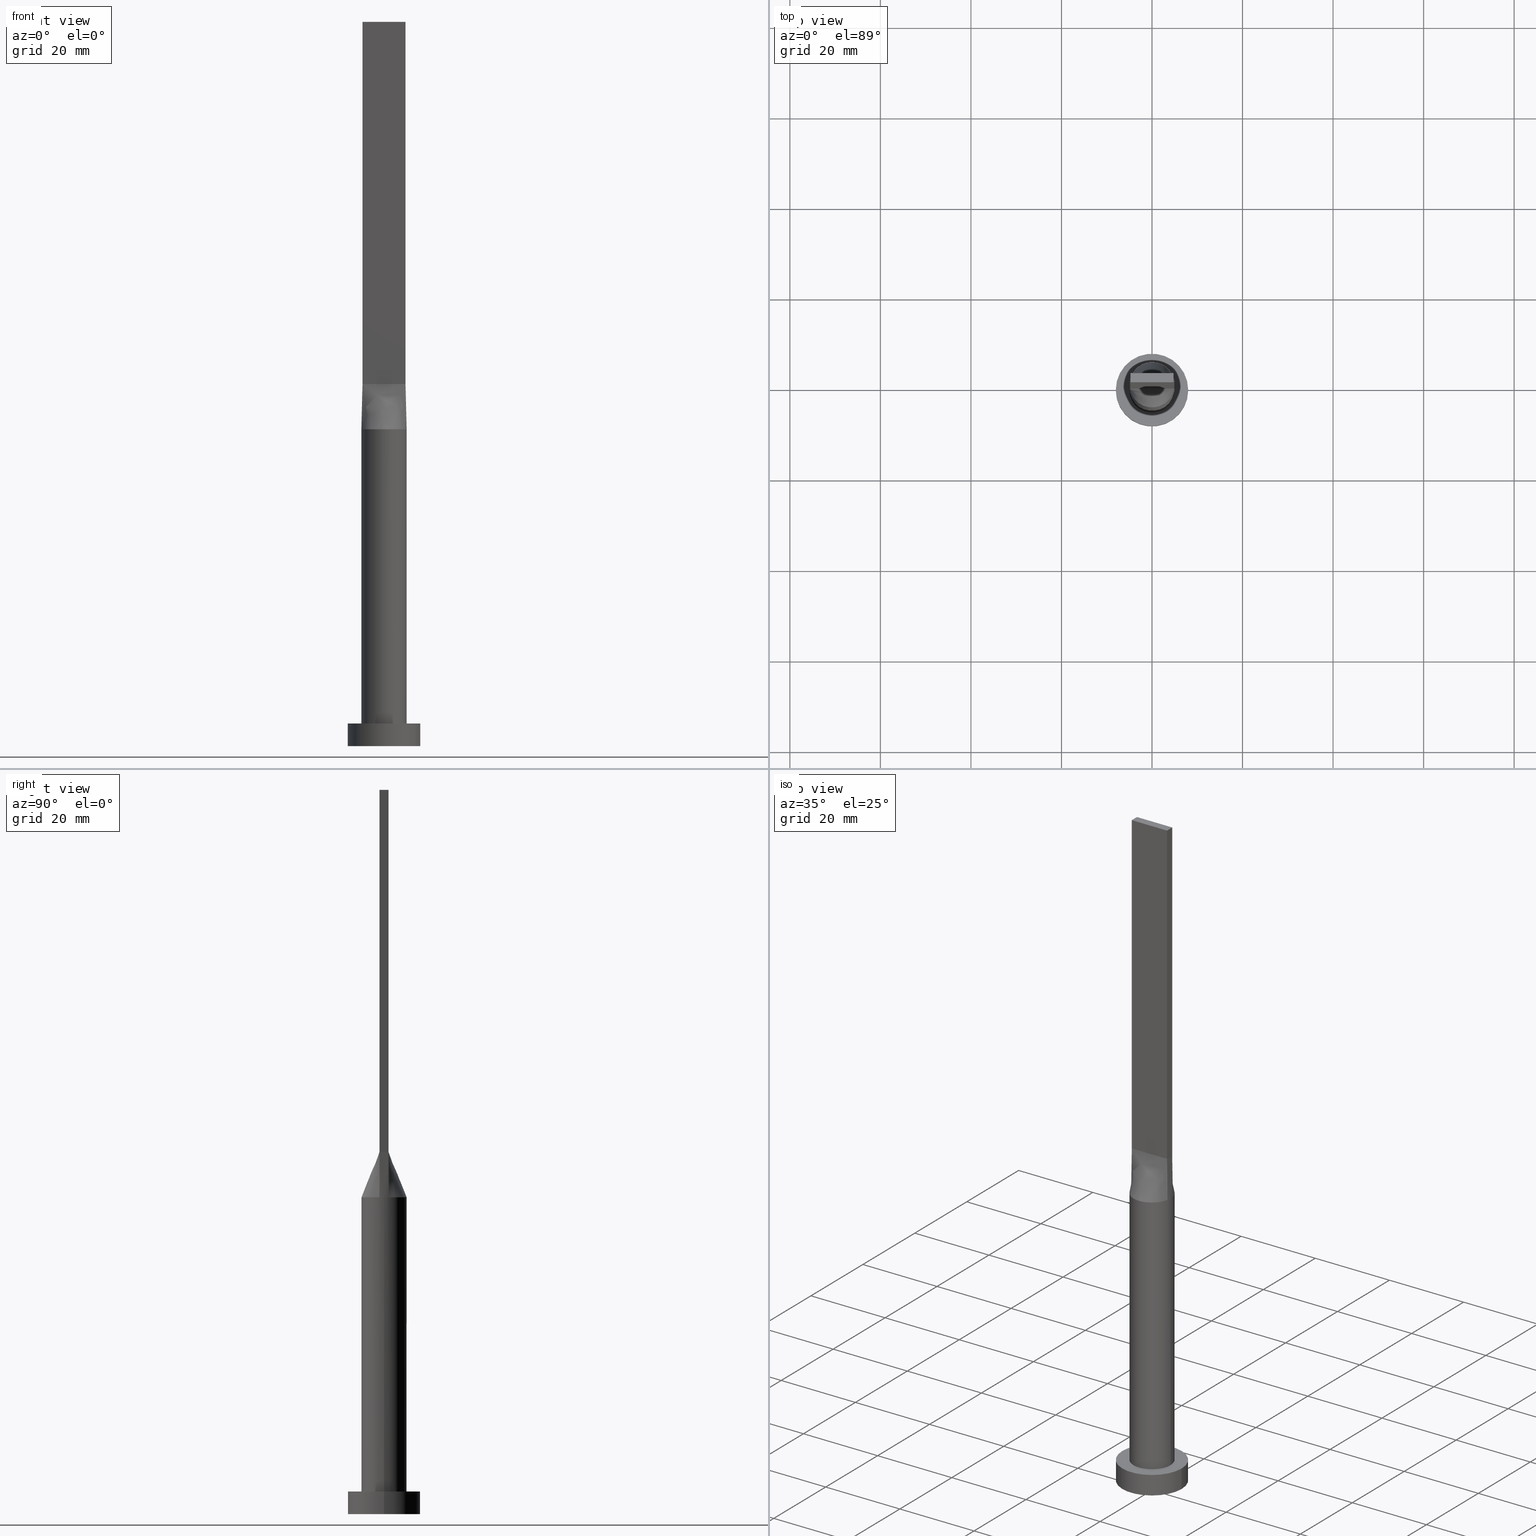
[diagram: canonical four-view strip — front | top / right | iso, engineering-drawing reading convention]
A machine part, canonical four-view strip (front | top / right | iso — engineering-drawing reading convention). The complete STEP part file that produces these views, byte-faithful:
ISO-10303-21;
HEADER;
FILE_DESCRIPTION (( 'STEP AP203' ),
    '1' );
FILE_NAME ('1424.STEP',
    '2023-02-13T09:33:48',
    ( '' ),
    ( '' ),
    'SwSTEP 2.0',
    'SolidWorks 2019',
    '' );
FILE_SCHEMA (( 'CONFIG_CONTROL_DESIGN' ));
ENDSEC;

DATA;
#1 = CARTESIAN_POINT ( 'NONE',  ( 1.583333333333339255, -0.9999999999999995559, 79.99999999999998579 ) ) ;
#2 = EDGE_LOOP ( 'NONE', ( #374, #24, #474, #335 ) ) ;
#3 = APPLICATION_PROTOCOL_DEFINITION ( 'international standard', 'config_control_design', 1994, #62 ) ;
#4 = CARTESIAN_POINT ( 'NONE',  ( 0.3958333333333403647, -0.9999999999999993339, 79.99999999999998579 ) ) ;
#5 = VERTEX_POINT ( 'NONE', #162 ) ;
#6 = CALENDAR_DATE ( 2023, 13, 2 ) ;
#7 = CARTESIAN_POINT ( 'NONE',  ( -4.667610010780609997, -1.859271532507959845, 70.00000000000001421 ) ) ;
#8 = CC_DESIGN_PERSON_AND_ORGANIZATION_ASSIGNMENT ( #105, #300, ( #299 ) ) ;
#9 = ORIENTED_EDGE ( 'NONE', *, *, #163, .F. ) ;
#10 = CALENDAR_DATE ( 2023, 13, 2 ) ;
#11 = CARTESIAN_POINT ( 'NONE',  ( 3.166666666666665630, 1.000000000000000000, 79.99999999999998579 ) ) ;
#12 = CARTESIAN_POINT ( 'NONE',  ( 4.750000000000000000, 1.000000000000000000, 80.00000000000000000 ) ) ;
#13 = PERSON_AND_ORGANIZATION_ROLE ( 'design_owner' ) ;
#14 = CARTESIAN_POINT ( 'NONE',  ( -4.750000000000000000, 0.6666666666666667407, 79.99999999999998579 ) ) ;
#15 = ORIENTED_EDGE ( 'NONE', *, *, #591, .F. ) ;
#16 = EDGE_CURVE ( 'NONE', #416, #378, #157, .T. ) ;
#17 = COORDINATED_UNIVERSAL_TIME_OFFSET ( 1, 0, .AHEAD. ) ;
#18 = AXIS2_PLACEMENT_3D ( 'NONE', #128, #311, #537 ) ;
#19 = CARTESIAN_POINT ( 'NONE',  ( -3.900093280396789819, 3.182195704254724422, 70.00000000000002842 ) ) ;
#20 = APPROVAL_PERSON_ORGANIZATION ( #575, #536, #65 ) ;
#21 = ORIENTED_EDGE ( 'NONE', *, *, #206, .T. ) ;
#22 = DATE_AND_TIME ( #6, #135 ) ;
#23 = CARTESIAN_POINT ( 'NONE',  ( -0.1979166666666680452, 1.000000000000000000, 79.99999999999998579 ) ) ;
#24 = ORIENTED_EDGE ( 'NONE', *, *, #197, .F. ) ;
#25 = CARTESIAN_POINT ( 'NONE',  ( -3.067114325249248097, 3.991228734590924976, 70.00000000000002842 ) ) ;
#26 = ORIENTED_EDGE ( 'NONE', *, *, #243, .T. ) ;
#27 = CARTESIAN_POINT ( 'NONE',  ( 4.750000000000000000, 1.000000000000000000, 160.0000000000000000 ) ) ;
#28 = CIRCLE ( 'NONE', #343, 5.000000000000000000 ) ;
#29 = CARTESIAN_POINT ( 'NONE',  ( 4.750000000000000000, -0.9999999999999997780, 160.0000000000000000 ) ) ;
#30 = ADVANCED_FACE ( 'NONE', ( #580 ), #302, .F. ) ;
#31 = DIRECTION ( 'NONE',  ( 0.000000000000000000, 0.000000000000000000, 1.000000000000000000 ) ) ;
#32 = DIRECTION ( 'NONE',  ( -0.000000000000000000, 0.000000000000000000, -1.000000000000000000 ) ) ;
#33 = CARTESIAN_POINT ( 'NONE',  ( -4.892748924933745691, 1.030052405249209269, 70.00000000000000000 ) ) ;
#34 = DIRECTION ( 'NONE',  ( 0.000000000000000000, 0.000000000000000000, 1.000000000000000000 ) ) ;
#35 = EDGE_CURVE ( 'NONE', #275, #378, #244, .T. ) ;
#36 = CARTESIAN_POINT ( 'NONE',  ( 5.000000000000000888, 3.511115666546218713E-17, 70.00000000000000000 ) ) ;
#37 = FACE_OUTER_BOUND ( 'NONE', #560, .T. ) ;
#38 = CIRCLE ( 'NONE', #308, 5.000000000000000000 ) ;
#39 = PLANE ( 'NONE',  #547 ) ;
#40 = CARTESIAN_POINT ( 'NONE',  ( -4.750000000000000000, -0.9999999999999991118, 160.0000000000000000 ) ) ;
#41 = CARTESIAN_POINT ( 'NONE',  ( -4.750000000000000000, 1.000000000000000000, 160.0000000000000000 ) ) ;
#42 = CARTESIAN_POINT ( 'NONE',  ( -4.892748924933745691, -1.030052405249207936, 70.00000000000000000 ) ) ;
#43 = AXIS2_PLACEMENT_3D ( 'NONE', #172, #499, #310 ) ;
#44 = B_SPLINE_SURFACE_WITH_KNOTS ( 'NONE', 3, 1, ( 
 ( #42, #183 ),
 ( #419, #103 ),
 ( #7, #186 ),
 ( #367, #422 ),
 ( #53, #509 ),
 ( #513, #191 ),
 ( #193, #549 ),
 ( #552, #412 ),
 ( #141, #95 ),
 ( #99, #321 ),
 ( #283, #56 ),
 ( #280, #239 ),
 ( #276, #4 ),
 ( #375, #147 ),
 ( #369, #469 ),
 ( #407, #1 ),
 ( #561, #143 ),
 ( #463, #50 ),
 ( #371, #559 ),
 ( #233, #229 ),
 ( #149, #272 ),
 ( #326, #139 ) ),
 .UNSPECIFIED., .F., .F., .F.,
 ( 4, 2, 2, 2, 2, 2, 2, 2, 2, 2, 4 ),
 ( 2, 2 ),
 ( 0.000000000000000000, 0.1250000000000000278, 0.2500000000000000555, 0.3750000000000001110, 0.4375000000000000555, 0.5000000000000000000, 0.5625000000000000000, 0.6250000000000000000, 0.7500000000000000000, 0.8750000000000001110, 1.000000000000000000 ),
 ( 0.000000000000000000, 1.000000000000000000 ),
 .UNSPECIFIED. ) ;
#45 = CARTESIAN_POINT ( 'NONE',  ( 5.000000000000000888, -0.3470731991230004421, 70.00000000000001421 ) ) ;
#46 = DIRECTION ( 'NONE',  ( 0.000000000000000000, 0.000000000000000000, 1.000000000000000000 ) ) ;
#47 = EDGE_CURVE ( 'NONE', #511, #275, #307, .T. ) ;
#48 = ORGANIZATION ( 'NEUR�EN�', 'NEUR�EN�', '' ) ;
#49 = CARTESIAN_POINT ( 'NONE',  ( 0.000000000000000000, 0.000000000000000000, 160.0000000000000000 ) ) ;
#50 = CARTESIAN_POINT ( 'NONE',  ( 2.770833333333338366, -0.9999999999999995559, 79.99999999999998579 ) ) ;
#51 = EDGE_LOOP ( 'NONE', ( #278, #597, #577, #432 ) ) ;
#52 = CARTESIAN_POINT ( 'NONE',  ( 0.000000000000000000, 0.000000000000000000, 0.000000000000000000 ) ) ;
#53 = CARTESIAN_POINT ( 'NONE',  ( -3.900093280396790263, -3.182195704254722646, 70.00000000000000000 ) ) ;
#54 = VERTEX_POINT ( 'NONE', #455 ) ;
#55 = EDGE_CURVE ( 'NONE', #550, #54, #494, .T. ) ;
#56 = CARTESIAN_POINT ( 'NONE',  ( -0.1979166666666593299, -0.9999999999999993339, 79.99999999999998579 ) ) ;
#57 = ORIENTED_EDGE ( 'NONE', *, *, #365, .F. ) ;
#58 = VECTOR ( 'NONE', #133, 999.9999999999998863 ) ;
#59 = DATE_AND_TIME ( #421, #436 ) ;
#60 = PLANE ( 'NONE',  #423 ) ;
#61 = EDGE_LOOP ( 'NONE', ( #337, #340, #204, #166 ) ) ;
#62 = APPLICATION_CONTEXT ( 'configuration controlled 3d designs of mechanical parts and assemblies' ) ;
#63 = CARTESIAN_POINT ( 'NONE',  ( 0.3958333333333319271, 1.000000000000000000, 79.99999999999998579 ) ) ;
#64 = ORIENTED_EDGE ( 'NONE', *, *, #286, .T. ) ;
#65 = APPROVAL_ROLE ( '' ) ;
#66 = FACE_OUTER_BOUND ( 'NONE', #250, .T. ) ;
#67 = ORIENTED_EDGE ( 'NONE', *, *, #562, .F. ) ;
#68 = EDGE_CURVE ( 'NONE', #322, #154, #453, .T. ) ;
#69 = CIRCLE ( 'NONE', #108, 5.000000000000000000 ) ;
#70 = FACE_OUTER_BOUND ( 'NONE', #342, .T. ) ;
#71 = VERTEX_POINT ( 'NONE', #357 ) ;
#72 = CARTESIAN_POINT ( 'NONE',  ( -1.583333333333334592, 1.000000000000000000, 79.99999999999998579 ) ) ;
#73 = ORIENTED_EDGE ( 'NONE', *, *, #121, .T. ) ;
#74 = EDGE_CURVE ( 'NONE', #511, #479, #398, .T. ) ;
#75 = CARTESIAN_POINT ( 'NONE',  ( 0.000000000000000000, 0.000000000000000000, 70.00000000000000000 ) ) ;
#76 = CARTESIAN_POINT ( 'NONE',  ( -3.900093280396789819, 3.182195704254724422, 70.00000000000002842 ) ) ;
#77 = DIRECTION ( 'NONE',  ( 1.000000000000000000, 0.000000000000000000, -0.000000000000000000 ) ) ;
#78 = VECTOR ( 'NONE', #498, 1000.000000000000000 ) ;
#79 = DIRECTION ( 'NONE',  ( -0.000000000000000000, -0.000000000000000000, -1.000000000000000000 ) ) ;
#80 = CARTESIAN_POINT ( 'NONE',  ( 0.000000000000000000, 0.000000000000000000, 5.000000000000000000 ) ) ;
#81 = LINE ( 'NONE', #134, #492 ) ;
#82 = ADVANCED_FACE ( 'NONE', ( #37 ), #176, .F. ) ;
#83 = CYLINDRICAL_SURFACE ( 'NONE', #164, 5.000000000000000000 ) ;
#84 = DIRECTION ( 'NONE',  ( -1.000000000000000000, 6.847592668329501559E-17, 0.000000000000000000 ) ) ;
#85 = DIRECTION ( 'NONE',  ( 0.000000000000000000, 1.000000000000000000, 0.000000000000000000 ) ) ;
#86 = CARTESIAN_POINT ( 'NONE',  ( 4.750000000000000000, -0.9999999999999997780, 160.0000000000000000 ) ) ;
#87 = VECTOR ( 'NONE', #411, 1000.000000000000000 ) ;
#88 = LINE ( 'NONE', #370, #58 ) ;
#89 = DIRECTION ( 'NONE',  ( -1.000000000000000000, -0.000000000000000000, -0.000000000000000000 ) ) ;
#90 = DIRECTION ( 'NONE',  ( -1.000000000000000000, 0.000000000000000000, 0.000000000000000000 ) ) ;
#91 = EDGE_CURVE ( 'NONE', #439, #237, #476, .T. ) ;
#92 = DIRECTION ( 'NONE',  ( 0.000000000000000000, 0.000000000000000000, 1.000000000000000000 ) ) ;
#93 = CIRCLE ( 'NONE', #387, 5.000000000000000000 ) ;
#94 = VECTOR ( 'NONE', #79, 1000.000000000000000 ) ;
#95 = CARTESIAN_POINT ( 'NONE',  ( -0.7916666666666588581, -0.9999999999999991118, 79.99999999999998579 ) ) ;
#96 = ORIENTED_EDGE ( 'NONE', *, *, #155, .F. ) ;
#97 = CC_DESIGN_APPROVAL ( #295, ( #544 ) ) ;
#98 = PLANE ( 'NONE',  #192 ) ;
#99 = CARTESIAN_POINT ( 'NONE',  ( -0.6760916456145810161, -4.965368365385190330, 70.00000000000004263 ) ) ;
#100 = ORIENTED_EDGE ( 'NONE', *, *, #554, .T. ) ;
#101 = EDGE_CURVE ( 'NONE', #54, #298, #81, .T. ) ;
#102 = CARTESIAN_POINT ( 'NONE',  ( 4.892748924933744803, 1.030052405249211045, 70.00000000000000000 ) ) ;
#103 = CARTESIAN_POINT ( 'NONE',  ( -4.354166666666665186, -0.9999999999999991118, 80.00000000000000000 ) ) ;
#104 = VERTEX_POINT ( 'NONE', #264 ) ;
#105 = PERSON_AND_ORGANIZATION ( #569, #48 ) ;
#106 = CARTESIAN_POINT ( 'NONE',  ( -3.166666666666668295, 1.000000000000000000, 79.99999999999998579 ) ) ;
#107 = ORIENTED_EDGE ( 'NONE', *, *, #16, .T. ) ;
#108 = AXIS2_PLACEMENT_3D ( 'NONE', #75, #260, #350 ) ;
#109 = PERSON_AND_ORGANIZATION ( #569, #48 ) ;
#110 = DIRECTION ( 'NONE',  ( -0.000000000000000000, -0.000000000000000000, -1.000000000000000000 ) ) ;
#111 = ORIENTED_EDGE ( 'NONE', *, *, #510, .F. ) ;
#112 = CARTESIAN_POINT ( 'NONE',  ( 0.7916666666666654084, 1.000000000000000000, 79.99999999999998579 ) ) ;
#113 = ADVANCED_FACE ( 'NONE', ( #259 ), #393, .F. ) ;
#114 = ORIENTED_EDGE ( 'NONE', *, *, #286, .F. ) ;
#115 = PERSON_AND_ORGANIZATION_ROLE ( 'design_supplier' ) ;
#116 = CARTESIAN_POINT ( 'NONE',  ( -4.892748924933745691, -1.030052405249208158, 70.00000000000000000 ) ) ;
#117 = EDGE_LOOP ( 'NONE', ( #150, #57 ) ) ;
#118 = PERSON_AND_ORGANIZATION_ROLE ( 'creator' ) ;
#119 = CARTESIAN_POINT ( 'NONE',  ( -4.750000000000000000, 0.3333333333333336479, 79.99999999999998579 ) ) ;
#120 = DIRECTION ( 'NONE',  ( -0.000000000000000000, -0.000000000000000000, -1.000000000000000000 ) ) ;
#121 = EDGE_CURVE ( 'NONE', #479, #439, #563, .T. ) ;
#122 = DIRECTION ( 'NONE',  ( -1.000000000000000000, 0.000000000000000000, 0.000000000000000000 ) ) ;
#123 = VERTEX_POINT ( 'NONE', #86 ) ;
#124 = LINE ( 'NONE', #445, #78 ) ;
#125 = CARTESIAN_POINT ( 'NONE',  ( -1.331739278681919991, 4.830988864699813590, 70.00000000000000000 ) ) ;
#126 = CARTESIAN_POINT ( 'NONE',  ( 4.750000000000000000, 1.000000000000000000, 80.00000000000000000 ) ) ;
#127 = CARTESIAN_POINT ( 'NONE',  ( -0.3380808736611314869, 4.999999999999999112, 70.00000000000000000 ) ) ;
#128 = CARTESIAN_POINT ( 'NONE',  ( 0.000000000000000000, 0.000000000000000000, 5.000000000000000000 ) ) ;
#129 = DIRECTION ( 'NONE',  ( 0.000000000000000000, 0.000000000000000000, 1.000000000000000000 ) ) ;
#130 = LINE ( 'NONE', #454, #483 ) ;
#131 = CARTESIAN_POINT ( 'NONE',  ( 0.000000000000000000, 0.000000000000000000, 70.00000000000000000 ) ) ;
#132 = VECTOR ( 'NONE', #89, 1000.000000000000000 ) ;
#133 = DIRECTION ( 'NONE',  ( -0.01427337385845013802, -0.003004920812305207807, -0.9998936149659166661 ) ) ;
#134 = CARTESIAN_POINT ( 'NONE',  ( -4.750000000000000000, 1.000000000000000000, 80.00000000000000000 ) ) ;
#135 = LOCAL_TIME ( 10, 33, 48.00000000000000000, #384 ) ;
#136 = VECTOR ( 'NONE', #348, 1000.000000000000000 ) ;
#137 = EDGE_CURVE ( 'NONE', #123, #275, #446, .T. ) ;
#138 = DIRECTION ( 'NONE',  ( -0.000000000000000000, -0.000000000000000000, -1.000000000000000000 ) ) ;
#139 = CARTESIAN_POINT ( 'NONE',  ( 4.750000000000000000, -0.9999999999999997780, 80.00000000000000000 ) ) ;
#140 = CYLINDRICAL_SURFACE ( 'NONE', #220, 8.000000000000000000 ) ;
#141 = CARTESIAN_POINT ( 'NONE',  ( -1.331739278681922656, -4.830988864699811813, 70.00000000000001421 ) ) ;
#142 = EDGE_LOOP ( 'NONE', ( #424, #331, #208, #574 ) ) ;
#143 = CARTESIAN_POINT ( 'NONE',  ( 1.979166666666672514, -0.9999999999999995559, 79.99999999999998579 ) ) ;
#144 = EDGE_CURVE ( 'NONE', #5, #71, #93, .T. ) ;
#145 = ORIENTED_EDGE ( 'NONE', *, *, #328, .F. ) ;
#146 = FACE_OUTER_BOUND ( 'NONE', #427, .T. ) ;
#147 = CARTESIAN_POINT ( 'NONE',  ( 0.7916666666666735130, -0.9999999999999995559, 79.99999999999998579 ) ) ;
#148 = APPROVAL_ROLE ( '' ) ;
#149 = CARTESIAN_POINT ( 'NONE',  ( 4.808752461626937702, -1.429035605956550103, 70.00000000000000000 ) ) ;
#150 = ORIENTED_EDGE ( 'NONE', *, *, #243, .F. ) ;
#151 = APPROVAL_STATUS ( 'not_yet_approved' ) ;
#152 = AXIS2_PLACEMENT_3D ( 'NONE', #40, #546, #84 ) ;
#153 = CARTESIAN_POINT ( 'NONE',  ( -1.331739278681919991, 4.830988864699813590, 70.00000000000000000 ) ) ;
#154 = VERTEX_POINT ( 'NONE', #399 ) ;
#155 = EDGE_CURVE ( 'NONE', #154, #408, #431, .T. ) ;
#156 = CARTESIAN_POINT ( 'NONE',  ( 4.750000000000000000, -0.9999999999999997780, 80.00000000000000000 ) ) ;
#157 = LINE ( 'NONE', #529, #296 ) ;
#158 = PERSON_AND_ORGANIZATION ( #569, #48 ) ;
#159 = CARTESIAN_POINT ( 'NONE',  ( 0.6760916456145784625, 4.965368365385191218, 70.00000000000001421 ) ) ;
#160 = ORIENTED_EDGE ( 'NONE', *, *, #55, .F. ) ;
#161 = CARTESIAN_POINT ( 'NONE',  ( -0.7916666666666679619, 1.000000000000000000, 79.99999999999998579 ) ) ;
#162 = CARTESIAN_POINT ( 'NONE',  ( -5.000000000000000888, -2.735102206719564433E-16, 70.00000000000000000 ) ) ;
#163 = EDGE_CURVE ( 'NONE', #378, #54, #599, .T. ) ;
#164 = AXIS2_PLACEMENT_3D ( 'NONE', #356, #530, #122 ) ;
#165 = CARTESIAN_POINT ( 'NONE',  ( -4.750000000000000000, -0.9999999999999991118, 80.00000000000000000 ) ) ;
#166 = ORIENTED_EDGE ( 'NONE', *, *, #328, .T. ) ;
#167 = LINE ( 'NONE', #212, #136 ) ;
#168 = CARTESIAN_POINT ( 'NONE',  ( 1.331739278681919991, 4.830988864699814478, 70.00000000000000000 ) ) ;
#169 = AXIS2_PLACEMENT_3D ( 'NONE', #346, #531, #490 ) ;
#170 = CARTESIAN_POINT ( 'NONE',  ( 5.000000000000000000, 6.123233995736766282E-16, 5.000000000000000000 ) ) ;
#171 = AXIS2_PLACEMENT_3D ( 'NONE', #540, #129, #363 ) ;
#172 = CARTESIAN_POINT ( 'NONE',  ( 0.000000000000000000, 0.000000000000000000, 70.00000000000000000 ) ) ;
#173 = ADVANCED_FACE ( 'NONE', ( #236 ), #44, .T. ) ;
#174 = LINE ( 'NONE', #501, #410 ) ;
#175 = AXIS2_PLACEMENT_3D ( 'NONE', #52, #235, #417 ) ;
#176 = PLANE ( 'NONE',  #152 ) ;
#177 = FACE_BOUND ( 'NONE', #117, .T. ) ;
#178 = CARTESIAN_POINT ( 'NONE',  ( -4.214142381859630859, 2.735777372109856387, 70.00000000000000000 ) ) ;
#179 =( LENGTH_UNIT ( ) NAMED_UNIT ( * ) SI_UNIT ( .MILLI., .METRE. ) );
#180 = CARTESIAN_POINT ( 'NONE',  ( 4.214142381859630859, 2.735777372109855943, 70.00000000000001421 ) ) ;
#181 = CC_DESIGN_PERSON_AND_ORGANIZATION_ASSIGNMENT ( #194, #115, ( #211 ) ) ;
#182 = CARTESIAN_POINT ( 'NONE',  ( 4.750000000000000000, 0.3333333333333350357, 79.99999999999998579 ) ) ;
#183 = CARTESIAN_POINT ( 'NONE',  ( -4.750000000000000000, -0.9999999999999991118, 80.00000000000000000 ) ) ;
#184 = AXIS2_PLACEMENT_3D ( 'NONE', #460, #46, #458 ) ;
#185 = VERTEX_POINT ( 'NONE', #415 ) ;
#186 = CARTESIAN_POINT ( 'NONE',  ( -3.958333333333331261, -0.9999999999999991118, 80.00000000000000000 ) ) ;
#187 = ORIENTED_EDGE ( 'NONE', *, *, #510, .T. ) ;
#188 = MECHANICAL_CONTEXT ( 'NONE', #62, 'mechanical' ) ;
#189 = APPROVAL ( #332, 'NEUR�EN�' ) ;
#190 = CARTESIAN_POINT ( 'NONE',  ( -4.892747712986291297, 1.030052143680498133, 70.00000000000000000 ) ) ;
#191 = CARTESIAN_POINT ( 'NONE',  ( -1.979166666666659857, -0.9999999999999991118, 79.99999999999998579 ) ) ;
#192 = AXIS2_PLACEMENT_3D ( 'NONE', #49, #282, #466 ) ;
#193 = CARTESIAN_POINT ( 'NONE',  ( -2.546422404201599488, -4.351724242187074765, 70.00000000000000000 ) ) ;
#194 = PERSON_AND_ORGANIZATION ( #569, #48 ) ;
#195 = CARTESIAN_POINT ( 'NONE',  ( 2.770833333333332593, 1.000000000000000000, 79.99999999999998579 ) ) ;
#196 = ORIENTED_EDGE ( 'NONE', *, *, #504, .T. ) ;
#197 = EDGE_CURVE ( 'NONE', #185, #298, #319, .T. ) ;
#198 = PERSON_AND_ORGANIZATION_ROLE ( 'creator' ) ;
#199 = CARTESIAN_POINT ( 'NONE',  ( -5.000000000000000000, -0.3470731991229979996, 70.00000000000001421 ) ) ;
#200 = ORIENTED_EDGE ( 'NONE', *, *, #373, .F. ) ;
#201 = VECTOR ( 'NONE', #506, 1000.000000000000000 ) ;
#202 = DATE_AND_TIME ( #290, #372 ) ;
#203 = CARTESIAN_POINT ( 'NONE',  ( 1.583333333333332593, 1.000000000000000000, 79.99999999999998579 ) ) ;
#204 = ORIENTED_EDGE ( 'NONE', *, *, #478, .T. ) ;
#205 = COORDINATED_UNIVERSAL_TIME_OFFSET ( 1, 0, .AHEAD. ) ;
#206 = EDGE_CURVE ( 'NONE', #237, #5, #28, .T. ) ;
#207 = CARTESIAN_POINT ( 'NONE',  ( -1.649264041307594963, 4.731318088779739917, 70.00000000000000000 ) ) ;
#208 = ORIENTED_EDGE ( 'NONE', *, *, #155, .T. ) ;
#209 = CARTESIAN_POINT ( 'NONE',  ( -2.770833333333334814, 1.000000000000000000, 79.99999999999998579 ) ) ;
#210 = ORIENTED_EDGE ( 'NONE', *, *, #144, .T. ) ;
#211 = PRODUCT_DEFINITION_FORMATION_WITH_SPECIFIED_SOURCE ( 'LIBOVOLN�', '', #541, .NOT_KNOWN. ) ;
#212 = CARTESIAN_POINT ( 'NONE',  ( -4.750000000000000000, 1.000000000000000000, 160.0000000000000000 ) ) ;
#213 = DIRECTION ( 'NONE',  ( -0.000000000000000000, -0.000000000000000000, -1.000000000000000000 ) ) ;
#214 = FACE_OUTER_BOUND ( 'NONE', #527, .T. ) ;
#215 = DIRECTION ( 'NONE',  ( 0.000000000000000000, 0.000000000000000000, 1.000000000000000000 ) ) ;
#216 = EDGE_CURVE ( 'NONE', #386, #322, #361, .T. ) ;
#217 = CARTESIAN_POINT ( 'NONE',  ( 0.000000000000000000, 0.000000000000000000, 0.000000000000000000 ) ) ;
#218 = DIRECTION ( 'NONE',  ( 1.000000000000000000, 0.000000000000000000, 0.000000000000000000 ) ) ;
#219 = DIRECTION ( 'NONE',  ( -0.000000000000000000, -0.000000000000000000, -1.000000000000000000 ) ) ;
#220 = AXIS2_PLACEMENT_3D ( 'NONE', #462, #459, #90 ) ;
#221 = CC_DESIGN_SECURITY_CLASSIFICATION ( #299, ( #211 ) ) ;
#222 = CARTESIAN_POINT ( 'NONE',  ( -3.067114325249248097, 3.991228734590924976, 70.00000000000002842 ) ) ;
#223 = DIRECTION ( 'NONE',  ( -0.000000000000000000, -0.000000000000000000, -1.000000000000000000 ) ) ;
#224 = CC_DESIGN_PERSON_AND_ORGANIZATION_ASSIGNMENT ( #525, #118, ( #211 ) ) ;
#225 = CARTESIAN_POINT ( 'NONE',  ( 4.667610010780610885, 1.859271532507960289, 70.00000000000001421 ) ) ;
#226 = CARTESIAN_POINT ( 'NONE',  ( -4.750000000000000000, -0.9999999999999991118, 160.0000000000000000 ) ) ;
#227 = CARTESIAN_POINT ( 'NONE',  ( 0.000000000000000000, 0.000000000000000000, 5.000000000000000000 ) ) ;
#228 = DIRECTION ( 'NONE',  ( 1.000000000000000000, -6.847592668329501559E-17, 0.000000000000000000 ) ) ;
#229 = CARTESIAN_POINT ( 'NONE',  ( 3.958333333333336146, -0.9999999999999995559, 79.99999999999998579 ) ) ;
#230 = VECTOR ( 'NONE', #548, 999.9999999999998863 ) ;
#231 = ORIENTED_EDGE ( 'NONE', *, *, #91, .F. ) ;
#232 = CARTESIAN_POINT ( 'NONE',  ( 4.750000000000000000, -0.3333333333333315940, 79.99999999999998579 ) ) ;
#233 = CARTESIAN_POINT ( 'NONE',  ( 4.667610010780611773, -1.859271532507964286, 70.00000000000005684 ) ) ;
#234 = ORIENTED_EDGE ( 'NONE', *, *, #35, .F. ) ;
#235 = DIRECTION ( 'NONE',  ( 0.000000000000000000, 0.000000000000000000, 1.000000000000000000 ) ) ;
#236 = FACE_OUTER_BOUND ( 'NONE', #570, .T. ) ;
#237 = VERTEX_POINT ( 'NONE', #190 ) ;
#238 = FACE_OUTER_BOUND ( 'NONE', #437, .T. ) ;
#239 = CARTESIAN_POINT ( 'NONE',  ( 0.1979166666666737351, -0.9999999999999993339, 79.99999999999998579 ) ) ;
#240 = ORIENTED_EDGE ( 'NONE', *, *, #101, .F. ) ;
#241 = PERSON_AND_ORGANIZATION ( #569, #48 ) ;
#242 = CARTESIAN_POINT ( 'NONE',  ( 4.892748924933745691, 1.030052405249209269, 70.00000000000000000 ) ) ;
#243 = EDGE_CURVE ( 'NONE', #104, #292, #288, .T. ) ;
#244 = LINE ( 'NONE', #12, #443 ) ;
#245 = DATE_TIME_ROLE ( 'classification_date' ) ;
#246 = CARTESIAN_POINT ( 'NONE',  ( 0.000000000000000000, 0.000000000000000000, 70.00000000000000000 ) ) ;
#247 = ORIENTED_EDGE ( 'NONE', *, *, #504, .F. ) ;
#248 = VECTOR ( 'NONE', #360, 1000.000000000000000 ) ;
#249 = CARTESIAN_POINT ( 'NONE',  ( -0.6760916456145782405, 4.965368365385191218, 70.00000000000001421 ) ) ;
#250 = EDGE_LOOP ( 'NONE', ( #257, #160, #200, #107 ) ) ;
#251 = VECTOR ( 'NONE', #223, 1000.000000000000000 ) ;
#252 = ADVANCED_FACE ( 'NONE', ( #467 ), #339, .T. ) ;
#253 = CARTESIAN_POINT ( 'NONE',  ( 1.979166666666666075, 1.000000000000000000, 79.99999999999998579 ) ) ;
#254 = EDGE_LOOP ( 'NONE', ( #556, #100, #294, #247, #383, #231 ) ) ;
#255 = B_SPLINE_SURFACE_WITH_KNOTS ( 'NONE', 3, 1, ( 
 ( #595, #325 ),
 ( #320, #271 ),
 ( #45, #232 ),
 ( #456, #182 ),
 ( #362, #512 ),
 ( #102, #545 ) ),
 .UNSPECIFIED., .F., .F., .F.,
 ( 4, 2, 4 ),
 ( 2, 2 ),
 ( 0.000000000000000000, 0.5000000000000000000, 1.000000000000000000 ),
 ( 0.000000000000000000, 1.000000000000000000 ),
 .UNSPECIFIED. ) ;
#256 = CARTESIAN_POINT ( 'NONE',  ( 4.808752461626938590, 1.429035605956548549, 70.00000000000000000 ) ) ;
#257 = ORIENTED_EDGE ( 'NONE', *, *, #163, .T. ) ;
#258 = CARTESIAN_POINT ( 'NONE',  ( 8.000000000000000000, 9.797174393178825657E-16, 5.000000000000000000 ) ) ;
#259 = FACE_OUTER_BOUND ( 'NONE', #2, .T. ) ;
#260 = DIRECTION ( 'NONE',  ( 0.000000000000000000, 0.000000000000000000, 1.000000000000000000 ) ) ;
#261 = CARTESIAN_POINT ( 'NONE',  ( 3.067114325249248097, 3.991228734590925864, 70.00000000000002842 ) ) ;
#262 = ADVANCED_FACE ( 'NONE', ( #66 ), #60, .F. ) ;
#263 = CARTESIAN_POINT ( 'NONE',  ( 0.000000000000000000, 0.000000000000000000, 5.000000000000000000 ) ) ;
#264 = CARTESIAN_POINT ( 'NONE',  ( -5.000000000000000000, 0.000000000000000000, 5.000000000000000000 ) ) ;
#265 = LINE ( 'NONE', #268, #251 ) ;
#266 = CARTESIAN_POINT ( 'NONE',  ( -4.808752461626937702, 1.429035605956548771, 70.00000000000000000 ) ) ;
#267 = ADVANCED_FACE ( 'NONE', ( #429 ), #551, .T. ) ;
#268 = CARTESIAN_POINT ( 'NONE',  ( -8.000000000000000000, 0.000000000000000000, 5.000000000000000000 ) ) ;
#269 = VECTOR ( 'NONE', #228, 1000.000000000000000 ) ;
#270 = CARTESIAN_POINT ( 'NONE',  ( 4.808752461626938590, 1.429035605956548549, 70.00000000000000000 ) ) ;
#271 = CARTESIAN_POINT ( 'NONE',  ( 4.750000000000000000, -0.6666666666666654084, 79.99999999999998579 ) ) ;
#272 = CARTESIAN_POINT ( 'NONE',  ( 4.354166666666668739, -0.9999999999999995559, 79.99999999999998579 ) ) ;
#273 = FACE_OUTER_BOUND ( 'NONE', #142, .T. ) ;
#274 = DIRECTION ( 'NONE',  ( 1.000000000000000000, 0.000000000000000000, 0.000000000000000000 ) ) ;
#275 = VERTEX_POINT ( 'NONE', #156 ) ;
#276 = CARTESIAN_POINT ( 'NONE',  ( 0.6760916456145764641, -4.965368365385190330, 70.00000000000002842 ) ) ;
#277 = CIRCLE ( 'NONE', #598, 8.000000000000000000 ) ;
#278 = ORIENTED_EDGE ( 'NONE', *, *, #35, .T. ) ;
#279 = ADVANCED_FACE ( 'NONE', ( #70 ), #532, .T. ) ;
#280 = CARTESIAN_POINT ( 'NONE',  ( 0.3380808736611294329, -5.000000000000000000, 69.99999999999998579 ) ) ;
#281 = ORIENTED_EDGE ( 'NONE', *, *, #519, .T. ) ;
#282 = DIRECTION ( 'NONE',  ( 0.000000000000000000, 0.000000000000000000, 1.000000000000000000 ) ) ;
#283 = CARTESIAN_POINT ( 'NONE',  ( -0.3380808736611334853, -5.000000000000000000, 70.00000000000001421 ) ) ;
#284 = ORIENTED_EDGE ( 'NONE', *, *, #91, .T. ) ;
#285 = DATE_AND_TIME ( #10, #355 ) ;
#286 = EDGE_CURVE ( 'NONE', #71, #511, #69, .T. ) ;
#287 = CARTESIAN_POINT ( 'NONE',  ( -5.000000000000002665, 0.3470731991229993874, 70.00000000000001421 ) ) ;
#288 = CIRCLE ( 'NONE', #473, 5.000000000000000000 ) ;
#289 = ORIENTED_EDGE ( 'NONE', *, *, #47, .T. ) ;
#290 = CALENDAR_DATE ( 2023, 13, 2 ) ;
#291 = CARTESIAN_POINT ( 'NONE',  ( 0.1979166666666652141, 1.000000000000000000, 79.99999999999998579 ) ) ;
#292 = VERTEX_POINT ( 'NONE', #170 ) ;
#293 = CARTESIAN_POINT ( 'NONE',  ( -0.3380808736611314869, 4.999999999999999112, 70.00000000000000000 ) ) ;
#294 = ORIENTED_EDGE ( 'NONE', *, *, #365, .T. ) ;
#295 = APPROVAL ( #151, 'NEUR�EN�' ) ;
#296 = VECTOR ( 'NONE', #120, 1000.000000000000000 ) ;
#297 = CARTESIAN_POINT ( 'NONE',  ( 3.900093280396791151, 3.182195704254724422, 70.00000000000001421 ) ) ;
#298 = VERTEX_POINT ( 'NONE', #165 ) ;
#299 = SECURITY_CLASSIFICATION ( '', '', #329 ) ;
#300 = PERSON_AND_ORGANIZATION_ROLE ( 'classification_officer' ) ;
#301 = CARTESIAN_POINT ( 'NONE',  ( 4.667610010780610885, 1.859271532507960289, 70.00000000000001421 ) ) ;
#302 = PLANE ( 'NONE',  #169 ) ;
#303 = CARTESIAN_POINT ( 'NONE',  ( -5.000000000000000000, 0.000000000000000000, 70.00000000000000000 ) ) ;
#304 = ORIENTED_EDGE ( 'NONE', *, *, #554, .F. ) ;
#305 = ADVANCED_FACE ( 'NONE', ( #584 ), #590, .T. ) ;
#306 = CARTESIAN_POINT ( 'NONE',  ( -8.000000000000000000, 0.000000000000000000, 0.000000000000000000 ) ) ;
#307 = LINE ( 'NONE', #402, #406 ) ;
#308 = AXIS2_PLACEMENT_3D ( 'NONE', #263, #31, #493 ) ;
#309 = CARTESIAN_POINT ( 'NONE',  ( -8.000000000000000000, 0.000000000000000000, 5.000000000000000000 ) ) ;
#310 = DIRECTION ( 'NONE',  ( 1.000000000000000000, -9.769962616701377556E-15, 0.000000000000000000 ) ) ;
#311 = DIRECTION ( 'NONE',  ( -0.000000000000000000, -0.000000000000000000, -1.000000000000000000 ) ) ;
#312 = CARTESIAN_POINT ( 'NONE',  ( 8.000000000000000000, 9.797174393178825657E-16, 5.000000000000000000 ) ) ;
#313 = EDGE_CURVE ( 'NONE', #322, #386, #277, .T. ) ;
#314 = DIRECTION ( 'NONE',  ( 1.000000000000000000, 0.000000000000000000, 0.000000000000000000 ) ) ;
#315 = CARTESIAN_POINT ( 'NONE',  ( -4.750000000000000000, 1.000000000000000000, 160.0000000000000000 ) ) ;
#316 = CARTESIAN_POINT ( 'NONE',  ( 4.892747712986307285, -1.030052143680505683, 70.00000000000000000 ) ) ;
#317 = DIRECTION ( 'NONE',  ( 0.000000000000000000, -1.000000000000000000, 0.000000000000000000 ) ) ;
#318 = CARTESIAN_POINT ( 'NONE',  ( 4.821374462466871513, 1.015026202624605522, 75.00000000000001421 ) ) ;
#319 = LINE ( 'NONE', #515, #201 ) ;
#320 = CARTESIAN_POINT ( 'NONE',  ( 4.963482788771055532, -0.6940665520219791995, 70.00000000000001421 ) ) ;
#321 = CARTESIAN_POINT ( 'NONE',  ( -0.3958333333333258208, -0.9999999999999991118, 79.99999999999998579 ) ) ;
#322 = VERTEX_POINT ( 'NONE', #258 ) ;
#323 = DIRECTION ( 'NONE',  ( 1.000000000000000000, 0.000000000000000000, 0.000000000000000000 ) ) ;
#324 = LOCAL_TIME ( 10, 33, 48.00000000000000000, #516 ) ;
#325 = CARTESIAN_POINT ( 'NONE',  ( 4.750000000000000000, -1.000000000000000000, 80.00000000000000000 ) ) ;
#326 = CARTESIAN_POINT ( 'NONE',  ( 4.892748924933744803, -1.030052405249212155, 70.00000000000000000 ) ) ;
#327 = ORIENTED_EDGE ( 'NONE', *, *, #519, .F. ) ;
#328 = EDGE_CURVE ( 'NONE', #408, #154, #567, .T. ) ;
#329 = SECURITY_CLASSIFICATION_LEVEL ( 'unclassified' ) ;
#330 = CARTESIAN_POINT ( 'NONE',  ( 3.958333333333332593, 1.000000000000000000, 80.00000000000000000 ) ) ;
#331 = ORIENTED_EDGE ( 'NONE', *, *, #68, .T. ) ;
#332 = APPROVAL_STATUS ( 'not_yet_approved' ) ;
#333 = CARTESIAN_POINT ( 'NONE',  ( -1.979166666666668073, 1.000000000000000000, 79.99999999999998579 ) ) ;
#334 = AXIS2_PLACEMENT_3D ( 'NONE', #533, #358, #314 ) ;
#335 = ORIENTED_EDGE ( 'NONE', *, *, #55, .T. ) ;
#336 = CARTESIAN_POINT ( 'NONE',  ( -4.750000000000000000, -0.6666666666666658525, 79.99999999999998579 ) ) ;
#337 = ORIENTED_EDGE ( 'NONE', *, *, #68, .F. ) ;
#338 = DATE_AND_TIME ( #425, #324 ) ;
#339 = CYLINDRICAL_SURFACE ( 'NONE', #495, 5.000000000000000000 ) ;
#340 = ORIENTED_EDGE ( 'NONE', *, *, #216, .F. ) ;
#341 = CARTESIAN_POINT ( 'NONE',  ( -4.750000000000000000, 1.000000000000000000, 80.00000000000000000 ) ) ;
#342 = EDGE_LOOP ( 'NONE', ( #284, #461, #9, #111 ) ) ;
#343 = AXIS2_PLACEMENT_3D ( 'NONE', #508, #92, #274 ) ;
#344 = CC_DESIGN_APPROVAL ( #536, ( #299 ) ) ;
#345 = FACE_OUTER_BOUND ( 'NONE', #566, .T. ) ;
#346 = CARTESIAN_POINT ( 'NONE',  ( 4.750000000000000000, -0.9999999999999997780, 160.0000000000000000 ) ) ;
#347 = CC_DESIGN_DATE_AND_TIME_ASSIGNMENT ( #202, #245, ( #299 ) ) ;
#348 = DIRECTION ( 'NONE',  ( 0.000000000000000000, -1.000000000000000000, 0.000000000000000000 ) ) ;
#349 = DIRECTION ( 'NONE',  ( 1.000000000000000000, 0.000000000000000000, -0.000000000000000000 ) ) ;
#350 = DIRECTION ( 'NONE',  ( 1.000000000000000000, 0.000000000000000000, 0.000000000000000000 ) ) ;
#351 = CLOSED_SHELL ( 'NONE', ( #252, #572, #305, #409, #418, #485, #173, #583, #267, #279, #262, #113, #82, #30, #601 ) ) ;
#352 = CARTESIAN_POINT ( 'NONE',  ( 3.900093280396791151, 3.182195704254724422, 70.00000000000001421 ) ) ;
#353 = UNCERTAINTY_MEASURE_WITH_UNIT (LENGTH_MEASURE( 1.000000000000000082E-05 ), #179, 'distance_accuracy_value', 'NONE');
#354 = APPROVAL_PERSON_ORGANIZATION ( #109, #295, #518 ) ;
#355 = LOCAL_TIME ( 10, 33, 48.00000000000000000, #17 ) ;
#356 = CARTESIAN_POINT ( 'NONE',  ( 0.000000000000000000, 0.000000000000000000, 70.00000000000000000 ) ) ;
#357 = CARTESIAN_POINT ( 'NONE',  ( -4.892752739180945554, -1.030053203145257168, 70.00000000000000000 ) ) ;
#358 = DIRECTION ( 'NONE',  ( 0.000000000000000000, 0.000000000000000000, 1.000000000000000000 ) ) ;
#359 = CARTESIAN_POINT ( 'NONE',  ( 0.6760916456145784625, 4.965368365385191218, 70.00000000000001421 ) ) ;
#360 = DIRECTION ( 'NONE',  ( -0.000000000000000000, -0.000000000000000000, -1.000000000000000000 ) ) ;
#361 = CIRCLE ( 'NONE', #184, 8.000000000000000000 ) ;
#362 = CARTESIAN_POINT ( 'NONE',  ( 4.963482788771057308, 0.6940665520219779783, 70.00000000000000000 ) ) ;
#363 = DIRECTION ( 'NONE',  ( 1.000000000000000000, 0.000000000000000000, 0.000000000000000000 ) ) ;
#364 = ORIENTED_EDGE ( 'NONE', *, *, #313, .T. ) ;
#365 = EDGE_CURVE ( 'NONE', #292, #104, #38, .T. ) ;
#366 =( NAMED_UNIT ( * ) PLANE_ANGLE_UNIT ( ) SI_UNIT ( $, .RADIAN. ) );
#367 = CARTESIAN_POINT ( 'NONE',  ( -4.214142381859629971, -2.735777372109855499, 70.00000000000002842 ) ) ;
#368 = EDGE_LOOP ( 'NONE', ( #145, #96 ) ) ;
#369 = CARTESIAN_POINT ( 'NONE',  ( 1.649264041307592965, -4.731318088779740805, 70.00000000000000000 ) ) ;
#370 = CARTESIAN_POINT ( 'NONE',  ( -4.821374462466872401, -1.015026202624603524, 75.00000000000001421 ) ) ;
#371 = CARTESIAN_POINT ( 'NONE',  ( 4.214142381859629971, -2.735777372109856831, 70.00000000000001421 ) ) ;
#372 = LOCAL_TIME ( 10, 33, 48.00000000000000000, #205 ) ;
#373 = EDGE_CURVE ( 'NONE', #416, #550, #124, .T. ) ;
#374 = ORIENTED_EDGE ( 'NONE', *, *, #101, .T. ) ;
#375 = CARTESIAN_POINT ( 'NONE',  ( 1.331739278681917771, -4.830988864699812702, 70.00000000000001421 ) ) ;
#376 = APPROVAL_DATE_TIME ( #285, #536 ) ;
#377 = CARTESIAN_POINT ( 'NONE',  ( 1.331739278681919991, 4.830988864699814478, 70.00000000000000000 ) ) ;
#378 = VERTEX_POINT ( 'NONE', #126 ) ;
#379 = CARTESIAN_POINT ( 'NONE',  ( -4.750000000000000000, -0.9999999999999991118, 80.00000000000000000 ) ) ;
#380 = ORIENTED_EDGE ( 'NONE', *, *, #74, .F. ) ;
#381 = COORDINATED_UNIVERSAL_TIME_OFFSET ( 1, 0, .AHEAD. ) ;
#382 = CARTESIAN_POINT ( 'NONE',  ( -4.750000000000000000, -0.3333333333333327042, 79.99999999999998579 ) ) ;
#383 = ORIENTED_EDGE ( 'NONE', *, *, #206, .F. ) ;
#384 = COORDINATED_UNIVERSAL_TIME_OFFSET ( 1, 0, .AHEAD. ) ;
#385 = CARTESIAN_POINT ( 'NONE',  ( -2.546422404201597711, 4.351724242187074765, 70.00000000000001421 ) ) ;
#386 = VERTEX_POINT ( 'NONE', #309 ) ;
#387 = AXIS2_PLACEMENT_3D ( 'NONE', #582, #34, #218 ) ;
#388 = CARTESIAN_POINT ( 'NONE',  ( -4.963482788771056420, 0.6940665520219767570, 70.00000000000001421 ) ) ;
#389 = ORIENTED_EDGE ( 'NONE', *, *, #144, .F. ) ;
#390 = EDGE_CURVE ( 'NONE', #550, #185, #167, .T. ) ;
#391 =( GEOMETRIC_REPRESENTATION_CONTEXT ( 3 ) GLOBAL_UNCERTAINTY_ASSIGNED_CONTEXT ( ( #353 ) ) GLOBAL_UNIT_ASSIGNED_CONTEXT ( ( #179, #366, #593 ) ) REPRESENTATION_CONTEXT ( 'NONE', 'WORKASPACE' ) );
#392 = CARTESIAN_POINT ( 'NONE',  ( 4.892748924933744803, 1.030052405249211045, 70.00000000000000000 ) ) ;
#393 = PLANE ( 'NONE',  #491 ) ;
#394 = DIRECTION ( 'NONE',  ( 1.000000000000000000, 0.000000000000000000, -0.000000000000000000 ) ) ;
#395 = DIRECTION ( 'NONE',  ( -0.000000000000000000, 1.000000000000000000, -0.000000000000000000 ) ) ;
#396 = CC_DESIGN_PERSON_AND_ORGANIZATION_ASSIGNMENT ( #158, #13, ( #541 ) ) ;
#397 = DIRECTION ( 'NONE',  ( 0.000000000000000000, 0.000000000000000000, 1.000000000000000000 ) ) ;
#398 = CIRCLE ( 'NONE', #43, 5.000000000000000000 ) ;
#399 = CARTESIAN_POINT ( 'NONE',  ( 8.000000000000000000, 9.797174393178825657E-16, 0.000000000000000000 ) ) ;
#400 = AXIS2_PLACEMENT_3D ( 'NONE', #217, #397, #77 ) ;
#401 = DIRECTION ( 'NONE',  ( 0.000000000000000000, 0.000000000000000000, 1.000000000000000000 ) ) ;
#402 = CARTESIAN_POINT ( 'NONE',  ( 4.821374462466871513, -1.015026202624605967, 75.00000000000001421 ) ) ;
#403 = CARTESIAN_POINT ( 'NONE',  ( -4.354166666666667851, 1.000000000000000000, 79.99999999999998579 ) ) ;
#404 = CARTESIAN_POINT ( 'NONE',  ( 0.3380808736611315979, 4.999999999999999112, 70.00000000000000000 ) ) ;
#405 = LINE ( 'NONE', #318, #230 ) ;
#406 = VECTOR ( 'NONE', #585, 999.9999999999998863 ) ;
#407 = CARTESIAN_POINT ( 'NONE',  ( 2.546422404201595491, -4.351724242187078318, 70.00000000000000000 ) ) ;
#408 = VERTEX_POINT ( 'NONE', #306 ) ;
#409 = ADVANCED_FACE ( 'NONE', ( #177, #214 ), #39, .T. ) ;
#410 = VECTOR ( 'NONE', #85, 1000.000000000000000 ) ;
#411 = DIRECTION ( 'NONE',  ( 1.000000000000000000, -6.847592668329501559E-17, 0.000000000000000000 ) ) ;
#412 = CARTESIAN_POINT ( 'NONE',  ( -0.9895833333333253767, -0.9999999999999991118, 79.99999999999998579 ) ) ;
#413 = ORIENTED_EDGE ( 'NONE', *, *, #591, .T. ) ;
#414 = LINE ( 'NONE', #507, #87 ) ;
#415 = CARTESIAN_POINT ( 'NONE',  ( -4.750000000000000000, -0.9999999999999991118, 160.0000000000000000 ) ) ;
#416 = VERTEX_POINT ( 'NONE', #27 ) ;
#417 = DIRECTION ( 'NONE',  ( 1.000000000000000000, 0.000000000000000000, 0.000000000000000000 ) ) ;
#418 = ADVANCED_FACE ( 'NONE', ( #452 ), #542, .F. ) ;
#419 = CARTESIAN_POINT ( 'NONE',  ( -4.808752461626938590, -1.429035605956546329, 69.99999999999998579 ) ) ;
#420 = MANIFOLD_SOLID_BREP ( 'P�idat vysunut�m5', #351 ) ;
#421 = CALENDAR_DATE ( 2023, 13, 2 ) ;
#422 = CARTESIAN_POINT ( 'NONE',  ( -3.166666666666662078, -0.9999999999999991118, 79.99999999999998579 ) ) ;
#423 = AXIS2_PLACEMENT_3D ( 'NONE', #526, #472, #426 ) ;
#424 = ORIENTED_EDGE ( 'NONE', *, *, #313, .F. ) ;
#425 = CALENDAR_DATE ( 2023, 13, 2 ) ;
#426 = DIRECTION ( 'NONE',  ( 0.000000000000000000, -0.000000000000000000, -1.000000000000000000 ) ) ;
#427 = EDGE_LOOP ( 'NONE', ( #464, #73, #187, #234, #600 ) ) ;
#428 = APPROVAL_DATE_TIME ( #22, #295 ) ;
#429 = FACE_OUTER_BOUND ( 'NONE', #521, .T. ) ;
#430 = APPLICATION_CONTEXT ( 'configuration controlled 3d designs of mechanical parts and assemblies' ) ;
#431 = CIRCLE ( 'NONE', #171, 8.000000000000000000 ) ;
#432 = ORIENTED_EDGE ( 'NONE', *, *, #137, .T. ) ;
#433 = PRODUCT_RELATED_PRODUCT_CATEGORY ( 'detail', '', ( #541 ) ) ;
#434 = ADVANCED_BREP_SHAPE_REPRESENTATION ( '1424', ( #420, #175 ), #391 ) ;
#435 = CARTESIAN_POINT ( 'NONE',  ( -0.3958333333333347026, 1.000000000000000000, 79.99999999999998579 ) ) ;
#436 = LOCAL_TIME ( 10, 33, 48.00000000000000000, #381 ) ;
#437 = EDGE_LOOP ( 'NONE', ( #484, #524, #442, #468 ) ) ;
#438 = CARTESIAN_POINT ( 'NONE',  ( 4.354166666666666075, 1.000000000000000000, 80.00000000000000000 ) ) ;
#439 = VERTEX_POINT ( 'NONE', #392 ) ;
#440 = CC_DESIGN_PERSON_AND_ORGANIZATION_ASSIGNMENT ( #471, #198, ( #544 ) ) ;
#441 = CARTESIAN_POINT ( 'NONE',  ( 0.9895833333333323711, 1.000000000000000000, 79.99999999999998579 ) ) ;
#442 = ORIENTED_EDGE ( 'NONE', *, *, #562, .T. ) ;
#443 = VECTOR ( 'NONE', #395, 1000.000000000000000 ) ;
#444 = PRODUCT_DEFINITION_SHAPE ( 'NONE', 'NONE',  #544 ) ;
#445 = CARTESIAN_POINT ( 'NONE',  ( 4.750000000000000000, 1.000000000000000000, 160.0000000000000000 ) ) ;
#446 = LINE ( 'NONE', #29, #500 ) ;
#447 = CARTESIAN_POINT ( 'NONE',  ( -4.750000000000000000, 1.000000000000000000, 80.00000000000000000 ) ) ;
#448 = CARTESIAN_POINT ( 'NONE',  ( -4.750000000000000000, 1.000000000000000000, 160.0000000000000000 ) ) ;
#449 = DIRECTION ( 'NONE',  ( 0.000000000000000000, 0.000000000000000000, 1.000000000000000000 ) ) ;
#450 = DIRECTION ( 'NONE',  ( 1.000000000000000000, 0.000000000000000000, 0.000000000000000000 ) ) ;
#451 = EDGE_CURVE ( 'NONE', #237, #54, #130, .T. ) ;
#452 = FACE_OUTER_BOUND ( 'NONE', #368, .T. ) ;
#453 = LINE ( 'NONE', #312, #94 ) ;
#454 = CARTESIAN_POINT ( 'NONE',  ( -4.821374462466872401, 1.015026202624604634, 75.00000000000001421 ) ) ;
#455 = CARTESIAN_POINT ( 'NONE',  ( -4.750000000000000000, 1.000000000000000000, 80.00000000000000000 ) ) ;
#456 = CARTESIAN_POINT ( 'NONE',  ( 5.000000000000000000, 0.3470731991229993874, 70.00000000000001421 ) ) ;
#457 = CC_DESIGN_DATE_AND_TIME_ASSIGNMENT ( #59, #571, ( #544 ) ) ;
#458 = DIRECTION ( 'NONE',  ( 1.000000000000000000, 0.000000000000000000, 0.000000000000000000 ) ) ;
#459 = DIRECTION ( 'NONE',  ( -0.000000000000000000, -0.000000000000000000, -1.000000000000000000 ) ) ;
#460 = CARTESIAN_POINT ( 'NONE',  ( 0.000000000000000000, 0.000000000000000000, 5.000000000000000000 ) ) ;
#461 = ORIENTED_EDGE ( 'NONE', *, *, #451, .T. ) ;
#462 = CARTESIAN_POINT ( 'NONE',  ( 0.000000000000000000, 0.000000000000000000, 5.000000000000000000 ) ) ;
#463 = CARTESIAN_POINT ( 'NONE',  ( 3.900093280396789819, -3.182195704254725754, 70.00000000000000000 ) ) ;
#464 = ORIENTED_EDGE ( 'NONE', *, *, #74, .T. ) ;
#465 = EDGE_CURVE ( 'NONE', #123, #416, #174, .T. ) ;
#466 = DIRECTION ( 'NONE',  ( 1.000000000000000000, 0.000000000000000000, -0.000000000000000000 ) ) ;
#467 = FACE_OUTER_BOUND ( 'NONE', #254, .T. ) ;
#468 = ORIENTED_EDGE ( 'NONE', *, *, #465, .T. ) ;
#469 = CARTESIAN_POINT ( 'NONE',  ( 0.9895833333333399207, -0.9999999999999995559, 79.99999999999998579 ) ) ;
#470 = ORIENTED_EDGE ( 'NONE', *, *, #197, .T. ) ;
#471 = PERSON_AND_ORGANIZATION ( #569, #48 ) ;
#472 = DIRECTION ( 'NONE',  ( 0.000000000000000000, -1.000000000000000000, 0.000000000000000000 ) ) ;
#473 = AXIS2_PLACEMENT_3D ( 'NONE', #227, #555, #323 ) ;
#474 = ORIENTED_EDGE ( 'NONE', *, *, #390, .F. ) ;
#475 = SHAPE_DEFINITION_REPRESENTATION ( #444, #434 ) ;
#476 = B_SPLINE_CURVE_WITH_KNOTS ( 'NONE', 3,
 ( #592, #270, #225, #180, #352, #261, #538, #594, #168, #359, #404, #127, #543, #125, #534, #502, #222, #76, #178, #497, #266, #588 ),
 .UNSPECIFIED., .F., .F.,
 ( 4, 2, 2, 2, 2, 2, 2, 2, 2, 2, 4 ),
 ( 0.000000000000000000, 0.1250000000000000278, 0.2500000000000000000, 0.3749999999999999445, 0.4375000000000000000, 0.5000000000000000000, 0.5625000000000000000, 0.6250000000000000000, 0.7500000000000000000, 0.8750000000000001110, 1.000000000000000000 ),
 .UNSPECIFIED. ) ;
#477 = CARTESIAN_POINT ( 'NONE',  ( -4.667610010780610885, 1.859271532507960067, 70.00000000000001421 ) ) ;
#478 = EDGE_CURVE ( 'NONE', #386, #408, #265, .T. ) ;
#479 = VERTEX_POINT ( 'NONE', #36 ) ;
#480 = CARTESIAN_POINT ( 'NONE',  ( -0.9895833333333347026, 1.000000000000000000, 79.99999999999998579 ) ) ;
#481 = ORIENTED_EDGE ( 'NONE', *, *, #137, .F. ) ;
#482 = CARTESIAN_POINT ( 'NONE',  ( 4.750000000000000000, 1.000000000000000000, 80.00000000000000000 ) ) ;
#483 = VECTOR ( 'NONE', #496, 999.9999999999998863 ) ;
#484 = ORIENTED_EDGE ( 'NONE', *, *, #373, .T. ) ;
#485 = ADVANCED_FACE ( 'NONE', ( #345 ), #83, .T. ) ;
#486 = APPROVAL_STATUS ( 'not_yet_approved' ) ;
#487 = CARTESIAN_POINT ( 'NONE',  ( 1.649264041307594297, 4.731318088779739917, 69.99999999999998579 ) ) ;
#488 = ORIENTED_EDGE ( 'NONE', *, *, #451, .F. ) ;
#489 = CARTESIAN_POINT ( 'NONE',  ( 0.000000000000000000, 0.000000000000000000, 5.000000000000000000 ) ) ;
#490 = DIRECTION ( 'NONE',  ( 0.000000000000000000, 0.000000000000000000, 1.000000000000000000 ) ) ;
#491 = AXIS2_PLACEMENT_3D ( 'NONE', #448, #349, #32 ) ;
#492 = VECTOR ( 'NONE', #317, 1000.000000000000000 ) ;
#493 = DIRECTION ( 'NONE',  ( 1.000000000000000000, 0.000000000000000000, 0.000000000000000000 ) ) ;
#494 = LINE ( 'NONE', #315, #248 ) ;
#495 = AXIS2_PLACEMENT_3D ( 'NONE', #246, #110, #528 ) ;
#496 = DIRECTION ( 'NONE',  ( 0.01427337385845013802, -0.003004920812305251175, 0.9998936149659166661 ) ) ;
#497 = CARTESIAN_POINT ( 'NONE',  ( -4.667610010780610885, 1.859271532507960067, 70.00000000000001421 ) ) ;
#498 = DIRECTION ( 'NONE',  ( -1.000000000000000000, 0.000000000000000000, 0.000000000000000000 ) ) ;
#499 = DIRECTION ( 'NONE',  ( 0.000000000000000000, 0.000000000000000000, 1.000000000000000000 ) ) ;
#500 = VECTOR ( 'NONE', #213, 1000.000000000000000 ) ;
#501 = CARTESIAN_POINT ( 'NONE',  ( 4.750000000000000000, -0.9999999999999997780, 160.0000000000000000 ) ) ;
#502 = CARTESIAN_POINT ( 'NONE',  ( -2.546422404201597711, 4.351724242187074765, 70.00000000000001421 ) ) ;
#503 = VECTOR ( 'NONE', #219, 1000.000000000000000 ) ;
#504 = EDGE_CURVE ( 'NONE', #5, #104, #539, .T. ) ;
#505 = LINE ( 'NONE', #558, #579 ) ;
#506 = DIRECTION ( 'NONE',  ( -0.000000000000000000, -0.000000000000000000, -1.000000000000000000 ) ) ;
#507 = CARTESIAN_POINT ( 'NONE',  ( -4.750000000000000000, -0.9999999999999991118, 80.00000000000000000 ) ) ;
#508 = CARTESIAN_POINT ( 'NONE',  ( 0.000000000000000000, 0.000000000000000000, 70.00000000000000000 ) ) ;
#509 = CARTESIAN_POINT ( 'NONE',  ( -2.770833333333328152, -0.9999999999999991118, 79.99999999999998579 ) ) ;
#510 = EDGE_CURVE ( 'NONE', #439, #378, #405, .T. ) ;
#511 = VERTEX_POINT ( 'NONE', #316 ) ;
#512 = CARTESIAN_POINT ( 'NONE',  ( 4.750000000000000000, 0.6666666666666678509, 79.99999999999998579 ) ) ;
#513 = CARTESIAN_POINT ( 'NONE',  ( -3.067114325249250317, -3.991228734590923199, 70.00000000000001421 ) ) ;
#514 = LINE ( 'NONE', #226, #269 ) ;
#515 = CARTESIAN_POINT ( 'NONE',  ( -4.750000000000000000, -0.9999999999999991118, 160.0000000000000000 ) ) ;
#516 = COORDINATED_UNIVERSAL_TIME_OFFSET ( 1, 0, .AHEAD. ) ;
#517 = CARTESIAN_POINT ( 'NONE',  ( -4.214142381859630859, 2.735777372109856387, 70.00000000000000000 ) ) ;
#518 = APPROVAL_ROLE ( '' ) ;
#519 = EDGE_CURVE ( 'NONE', #298, #71, #88, .T. ) ;
#520 = CARTESIAN_POINT ( 'NONE',  ( -3.958333333333334370, 1.000000000000000000, 79.99999999999998579 ) ) ;
#521 = EDGE_LOOP ( 'NONE', ( #21, #210, #327, #240, #488 ) ) ;
#522 = APPLICATION_PROTOCOL_DEFINITION ( 'international standard', 'config_control_design', 1994, #430 ) ;
#523 = CARTESIAN_POINT ( 'NONE',  ( 4.214142381859630859, 2.735777372109855943, 70.00000000000001421 ) ) ;
#524 = ORIENTED_EDGE ( 'NONE', *, *, #390, .T. ) ;
#525 = PERSON_AND_ORGANIZATION ( #569, #48 ) ;
#526 = CARTESIAN_POINT ( 'NONE',  ( 4.750000000000000000, 1.000000000000000000, 160.0000000000000000 ) ) ;
#527 = EDGE_LOOP ( 'NONE', ( #553, #364 ) ) ;
#528 = DIRECTION ( 'NONE',  ( -1.000000000000000000, 0.000000000000000000, 0.000000000000000000 ) ) ;
#529 = CARTESIAN_POINT ( 'NONE',  ( 4.750000000000000000, 1.000000000000000000, 160.0000000000000000 ) ) ;
#530 = DIRECTION ( 'NONE',  ( -0.000000000000000000, -0.000000000000000000, -1.000000000000000000 ) ) ;
#531 = DIRECTION ( 'NONE',  ( -1.000000000000000000, 0.000000000000000000, 0.000000000000000000 ) ) ;
#532 = B_SPLINE_SURFACE_WITH_KNOTS ( 'NONE', 3, 1, ( 
 ( #242, #482 ),
 ( #256, #438 ),
 ( #301, #330 ),
 ( #523, #11 ),
 ( #297, #195 ),
 ( #573, #253 ),
 ( #578, #203 ),
 ( #487, #441 ),
 ( #377, #112 ),
 ( #159, #63 ),
 ( #565, #291 ),
 ( #293, #23 ),
 ( #249, #435 ),
 ( #153, #161 ),
 ( #207, #480 ),
 ( #385, #72 ),
 ( #25, #333 ),
 ( #19, #209 ),
 ( #517, #106 ),
 ( #477, #520 ),
 ( #581, #403 ),
 ( #33, #447 ) ),
 .UNSPECIFIED., .F., .F., .F.,
 ( 4, 2, 2, 2, 2, 2, 2, 2, 2, 2, 4 ),
 ( 2, 2 ),
 ( 0.000000000000000000, 0.1250000000000000278, 0.2500000000000000000, 0.3749999999999999445, 0.4375000000000000000, 0.5000000000000000000, 0.5625000000000000000, 0.6250000000000000000, 0.7500000000000000000, 0.8750000000000001110, 1.000000000000000000 ),
 ( 0.000000000000000000, 1.000000000000000000 ),
 .UNSPECIFIED. ) ;
#533 = CARTESIAN_POINT ( 'NONE',  ( 0.000000000000000000, 0.000000000000000000, 0.000000000000000000 ) ) ;
#534 = CARTESIAN_POINT ( 'NONE',  ( -1.649264041307594963, 4.731318088779739917, 70.00000000000000000 ) ) ;
#535 = DESIGN_CONTEXT ( 'detailed design', #430, 'design' ) ;
#536 = APPROVAL ( #486, 'NEUR�EN�' ) ;
#537 = DIRECTION ( 'NONE',  ( -1.000000000000000000, 0.000000000000000000, 0.000000000000000000 ) ) ;
#538 = CARTESIAN_POINT ( 'NONE',  ( 2.546422404201596823, 4.351724242187075653, 70.00000000000000000 ) ) ;
#539 = LINE ( 'NONE', #303, #503 ) ;
#540 = CARTESIAN_POINT ( 'NONE',  ( 0.000000000000000000, 0.000000000000000000, 0.000000000000000000 ) ) ;
#541 = PRODUCT ( '1424', '1424', '', ( #188 ) ) ;
#542 = PLANE ( 'NONE',  #400 ) ;
#543 = CARTESIAN_POINT ( 'NONE',  ( -0.6760916456145782405, 4.965368365385191218, 70.00000000000001421 ) ) ;
#544 = PRODUCT_DEFINITION ( 'NEZN�M�', '', #211, #535 ) ;
#545 = CARTESIAN_POINT ( 'NONE',  ( 4.750000000000000000, 1.000000000000000000, 80.00000000000000000 ) ) ;
#546 = DIRECTION ( 'NONE',  ( 6.847592668329501559E-17, 1.000000000000000000, -0.000000000000000000 ) ) ;
#547 = AXIS2_PLACEMENT_3D ( 'NONE', #80, #449, #394 ) ;
#548 = DIRECTION ( 'NONE',  ( -0.01427337385845005129, -0.003004920812305424214, 0.9998936149659166661 ) ) ;
#549 = CARTESIAN_POINT ( 'NONE',  ( -1.583333333333325932, -0.9999999999999991118, 79.99999999999998579 ) ) ;
#550 = VERTEX_POINT ( 'NONE', #41 ) ;
#551 = B_SPLINE_SURFACE_WITH_KNOTS ( 'NONE', 3, 1, ( 
 ( #576, #341 ),
 ( #388, #14 ),
 ( #287, #119 ),
 ( #199, #382 ),
 ( #568, #336 ),
 ( #116, #379 ) ),
 .UNSPECIFIED., .F., .F., .F.,
 ( 4, 2, 4 ),
 ( 2, 2 ),
 ( 0.000000000000000000, 0.5000000000000000000, 1.000000000000000000 ),
 ( 0.000000000000000000, 1.000000000000000000 ),
 .UNSPECIFIED. ) ;
#552 = CARTESIAN_POINT ( 'NONE',  ( -1.649264041307596962, -4.731318088779738140, 70.00000000000000000 ) ) ;
#553 = ORIENTED_EDGE ( 'NONE', *, *, #216, .T. ) ;
#554 = EDGE_CURVE ( 'NONE', #479, #292, #505, .T. ) ;
#555 = DIRECTION ( 'NONE',  ( 0.000000000000000000, 0.000000000000000000, 1.000000000000000000 ) ) ;
#556 = ORIENTED_EDGE ( 'NONE', *, *, #121, .F. ) ;
#557 = CC_DESIGN_APPROVAL ( #189, ( #211 ) ) ;
#558 = CARTESIAN_POINT ( 'NONE',  ( 5.000000000000000000, 6.123233995736766282E-16, 70.00000000000000000 ) ) ;
#559 = CARTESIAN_POINT ( 'NONE',  ( 3.166666666666671404, -0.9999999999999995559, 79.99999999999998579 ) ) ;
#560 = EDGE_LOOP ( 'NONE', ( #413, #481, #67, #470 ) ) ;
#561 = CARTESIAN_POINT ( 'NONE',  ( 3.067114325249245876, -3.991228734590925864, 70.00000000000000000 ) ) ;
#562 = EDGE_CURVE ( 'NONE', #185, #123, #514, .T. ) ;
#563 = CIRCLE ( 'NONE', #586, 5.000000000000000000 ) ;
#564 = APPROVAL_DATE_TIME ( #338, #189 ) ;
#565 = CARTESIAN_POINT ( 'NONE',  ( 0.3380808736611315979, 4.999999999999999112, 70.00000000000000000 ) ) ;
#566 = EDGE_LOOP ( 'NONE', ( #304, #380, #114, #389, #196, #26 ) ) ;
#567 = CIRCLE ( 'NONE', #334, 8.000000000000000000 ) ;
#568 = CARTESIAN_POINT ( 'NONE',  ( -4.963482788771057308, -0.6940665520219756468, 70.00000000000000000 ) ) ;
#569 = PERSON ( 'NEUR�EN�', 'NEUR�EN�', 'NEUR�EN�', ('NEUR�EN�'), ('NEUR�EN�'), ('NEUR�EN�') ) ;
#570 = EDGE_LOOP ( 'NONE', ( #64, #289, #15, #281 ) ) ;
#571 = DATE_TIME_ROLE ( 'creation_date' ) ;
#572 = ADVANCED_FACE ( 'NONE', ( #273 ), #140, .T. ) ;
#573 = CARTESIAN_POINT ( 'NONE',  ( 3.067114325249248097, 3.991228734590925864, 70.00000000000002842 ) ) ;
#574 = ORIENTED_EDGE ( 'NONE', *, *, #478, .F. ) ;
#575 = PERSON_AND_ORGANIZATION ( #569, #48 ) ;
#576 = CARTESIAN_POINT ( 'NONE',  ( -4.892748924933745691, 1.030052405249209269, 70.00000000000000000 ) ) ;
#577 = ORIENTED_EDGE ( 'NONE', *, *, #465, .F. ) ;
#578 = CARTESIAN_POINT ( 'NONE',  ( 2.546422404201596823, 4.351724242187075653, 70.00000000000000000 ) ) ;
#579 = VECTOR ( 'NONE', #138, 1000.000000000000000 ) ;
#580 = FACE_OUTER_BOUND ( 'NONE', #51, .T. ) ;
#581 = CARTESIAN_POINT ( 'NONE',  ( -4.808752461626937702, 1.429035605956548771, 70.00000000000000000 ) ) ;
#582 = CARTESIAN_POINT ( 'NONE',  ( 0.000000000000000000, 0.000000000000000000, 70.00000000000000000 ) ) ;
#583 = ADVANCED_FACE ( 'NONE', ( #146 ), #255, .T. ) ;
#584 = FACE_OUTER_BOUND ( 'NONE', #61, .T. ) ;
#585 = DIRECTION ( 'NONE',  ( -0.01427337385845005129, 0.003004920812305554318, 0.9998936149659166661 ) ) ;
#586 = AXIS2_PLACEMENT_3D ( 'NONE', #131, #215, #450 ) ;
#587 = DIRECTION ( 'NONE',  ( 1.000000000000000000, 0.000000000000000000, 0.000000000000000000 ) ) ;
#588 = CARTESIAN_POINT ( 'NONE',  ( -4.892747712986291297, 1.030052143680498133, 70.00000000000000000 ) ) ;
#589 = APPROVAL_PERSON_ORGANIZATION ( #241, #189, #148 ) ;
#590 = CYLINDRICAL_SURFACE ( 'NONE', #18, 8.000000000000000000 ) ;
#591 = EDGE_CURVE ( 'NONE', #298, #275, #414, .T. ) ;
#592 = CARTESIAN_POINT ( 'NONE',  ( 4.892748924933744803, 1.030052405249211045, 70.00000000000000000 ) ) ;
#593 =( NAMED_UNIT ( * ) SI_UNIT ( $, .STERADIAN. ) SOLID_ANGLE_UNIT ( ) );
#594 = CARTESIAN_POINT ( 'NONE',  ( 1.649264041307594297, 4.731318088779739917, 69.99999999999998579 ) ) ;
#595 = CARTESIAN_POINT ( 'NONE',  ( 4.892748924933744803, -1.030052405249212155, 70.00000000000000000 ) ) ;
#596 = CARTESIAN_POINT ( 'NONE',  ( -4.750000000000000000, 1.000000000000000000, 80.00000000000000000 ) ) ;
#597 = ORIENTED_EDGE ( 'NONE', *, *, #16, .F. ) ;
#598 = AXIS2_PLACEMENT_3D ( 'NONE', #489, #401, #587 ) ;
#599 = LINE ( 'NONE', #596, #132 ) ;
#600 = ORIENTED_EDGE ( 'NONE', *, *, #47, .F. ) ;
#601 = ADVANCED_FACE ( 'NONE', ( #238 ), #98, .T. ) ;
ENDSEC;
END-ISO-10303-21;
